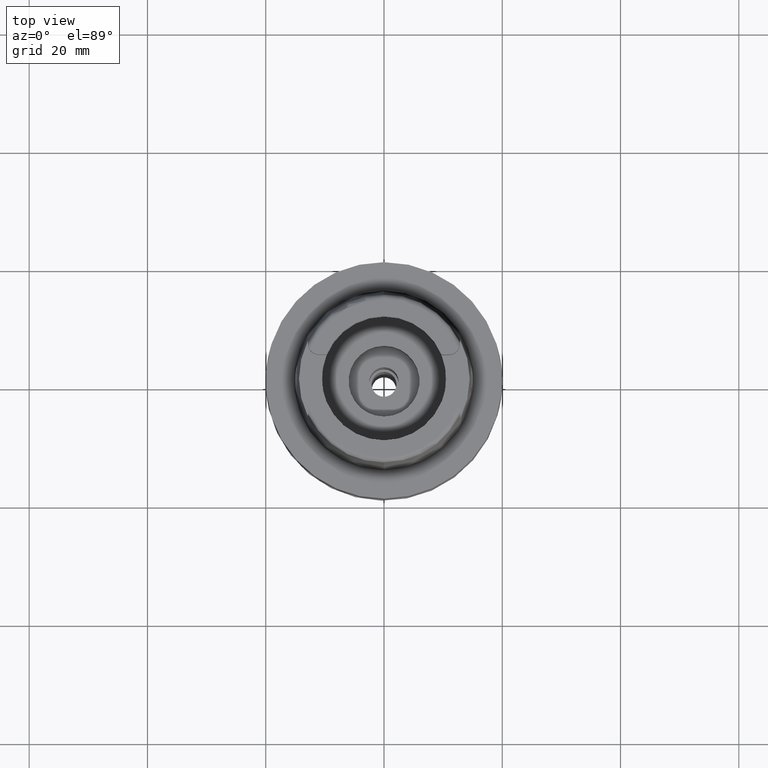
[diagram: clean part render]
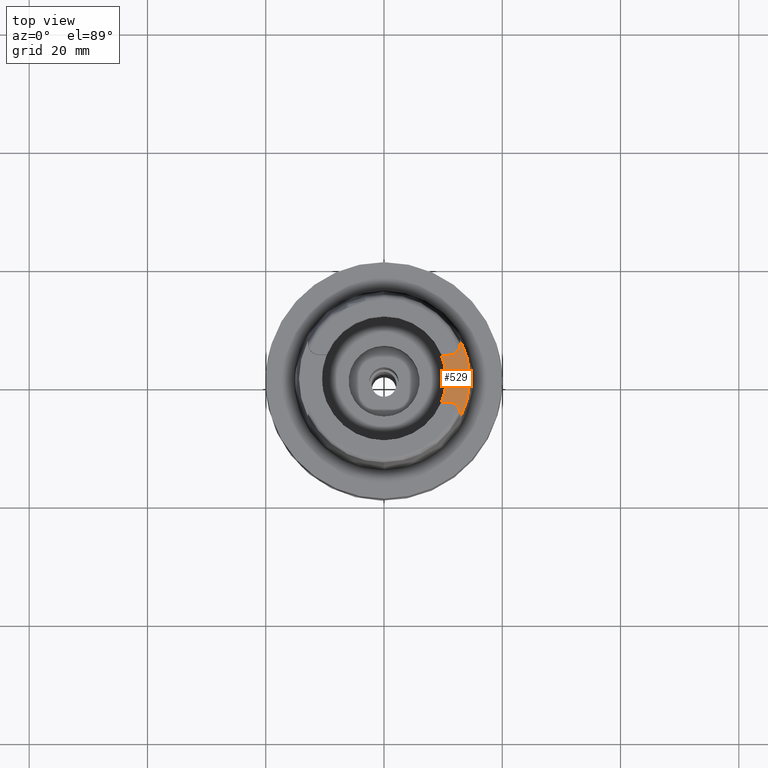
[diagram: same view with one face highlighted and labeled with its STEP entity id]
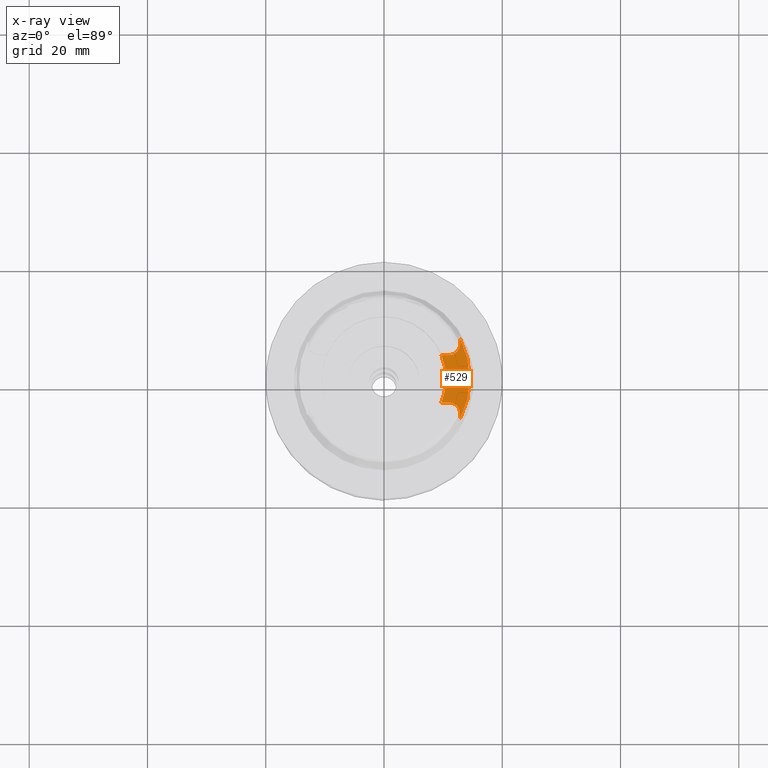
[diagram: x-ray of the same camera — body ghosted, the highlighted face saturated]
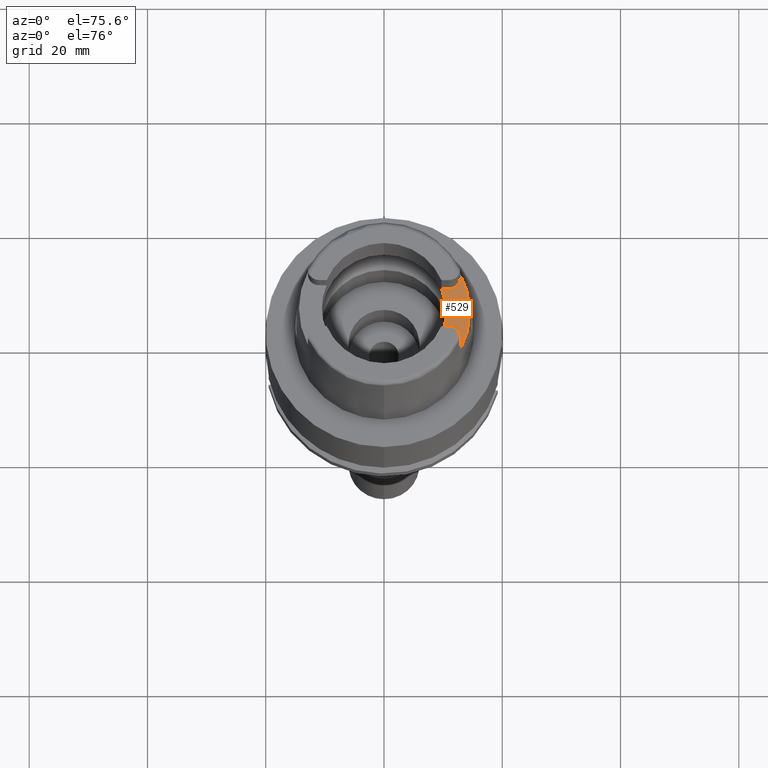
[diagram: same view with one face highlighted and labeled with its STEP entity id]
A machine part, top view. The second image highlights one B-rep face of the part: STEP entity #529.
The next image is the same camera in x-ray: the body ghosted, the highlighted face saturated — about 0% of this face is hidden behind the body in this view.
A second angle (auxiliary view) of the same face is appended — the face is thin or edge-on in the first view.
In plain terms, the highlighted planar face has unit normal (0, 0, 1).
Its self-contained STEP definition (entity closure, byte-faithful):
#44 = FACE_OUTER_BOUND ( 'NONE', #3486, .T. ) ;
#78 = VERTEX_POINT ( 'NONE', #3207 ) ;
#120 = CARTESIAN_POINT ( 'NONE',  ( 12.88000000001000167, 6.659963896840999986, 14.00000000000000000 ) ) ;
#247 = ORIENTED_EDGE ( 'NONE', *, *, #4258, .F. ) ;
#314 = VECTOR ( 'NONE', #4178, 1000.000000000000000 ) ;
#410 = VERTEX_POINT ( 'NONE', #1577 ) ;
#501 = AXIS2_PLACEMENT_3D ( 'NONE', #1973, #3650, #4432 ) ;
#529 = ADVANCED_FACE ( 'NONE', ( #44 ), #2117, .T. ) ;
#620 = DIRECTION ( 'NONE',  ( 0.0000000000000000000, 0.0000000000000000000, 1.000000000000000000 ) ) ;
#648 = LINE ( 'NONE', #1896, #2733 ) ;
#679 = CIRCLE ( 'NONE', #501, 10.49999999999999822 ) ;
#688 = LINE ( 'NONE', #1985, #1730 ) ;
#760 = ORIENTED_EDGE ( 'NONE', *, *, #4969, .F. ) ;
#908 = CARTESIAN_POINT ( 'NONE',  ( 9.697905701747998819, 4.025000000000000355, 14.00000000000000000 ) ) ;
#966 = DIRECTION ( 'NONE',  ( 0.8882768779220027167, 0.4593083802296007434, 0.0000000000000000000 ) ) ;
#1102 = ORIENTED_EDGE ( 'NONE', *, *, #2345, .F. ) ;
#1194 = CARTESIAN_POINT ( 'NONE',  ( 12.88000000000000078, 5.904999999999999361, 14.00000000000000000 ) ) ;
#1248 = CARTESIAN_POINT ( 'NONE',  ( 0.0000000000000000000, 0.0000000000000000000, 14.00000000000000000 ) ) ;
#1288 = CARTESIAN_POINT ( 'NONE',  ( 0.0000000000000000000, 0.0000000000000000000, 14.00000000000000000 ) ) ;
#1506 = ORIENTED_EDGE ( 'NONE', *, *, #1954, .F. ) ;
#1577 = CARTESIAN_POINT ( 'NONE',  ( 9.697905701747998819, 4.025000000000000355, 14.00000000000000000 ) ) ;
#1632 = AXIS2_PLACEMENT_3D ( 'NONE', #1288, #3046, #966 ) ;
#1633 = DIRECTION ( 'NONE',  ( 1.000000000000000000, 0.0000000000000000000, 0.0000000000000000000 ) ) ;
#1690 = LINE ( 'NONE', #908, #314 ) ;
#1730 = VECTOR ( 'NONE', #3982, 1000.000000000000227 ) ;
#1835 = ORIENTED_EDGE ( 'NONE', *, *, #3383, .F. ) ;
#1847 = VERTEX_POINT ( 'NONE', #1194 ) ;
#1893 = ORIENTED_EDGE ( 'NONE', *, *, #4910, .F. ) ;
#1896 = CARTESIAN_POINT ( 'NONE',  ( 12.88000825962999940, -6.659927628489000107, 14.00000000000000000 ) ) ;
#1954 = EDGE_CURVE ( 'NONE', #4323, #2676, #3736, .T. ) ;
#1973 = CARTESIAN_POINT ( 'NONE',  ( 0.0000000000000000000, 0.0000000000000000000, 14.00000000000000000 ) ) ;
#1985 = CARTESIAN_POINT ( 'NONE',  ( 12.88000000000000078, 5.904999999999999361, 14.00000000000000000 ) ) ;
#2066 = CIRCLE ( 'NONE', #2481, 1.879999999999999671 ) ;
#2117 = PLANE ( 'NONE',  #4183 ) ;
#2136 = VERTEX_POINT ( 'NONE', #120 ) ;
#2323 = CARTESIAN_POINT ( 'NONE',  ( 11.00000000000000000, 5.904999999999999361, 14.00000000000000000 ) ) ;
#2345 = EDGE_CURVE ( 'NONE', #410, #78, #1690, .T. ) ;
#2481 = AXIS2_PLACEMENT_3D ( 'NONE', #2323, #2768, #5252 ) ;
#2495 = ORIENTED_EDGE ( 'NONE', *, *, #5040, .F. ) ;
#2531 = EDGE_CURVE ( 'NONE', #4759, #4323, #4702, .T. ) ;
#2585 = DIRECTION ( 'NONE',  ( -1.094096263035051506E-05, 0.9999999999401476547, -1.505930282910069536E-13 ) ) ;
#2676 = VERTEX_POINT ( 'NONE', #3283 ) ;
#2733 = VECTOR ( 'NONE', #2585, 1000.000000000000114 ) ;
#2768 = DIRECTION ( 'NONE',  ( 0.0000000000000000000, 0.0000000000000000000, 1.000000000000000000 ) ) ;
#3046 = DIRECTION ( 'NONE',  ( 0.0000000000000000000, 0.0000000000000000000, -1.000000000000000000 ) ) ;
#3071 = CARTESIAN_POINT ( 'NONE',  ( 11.00000000000000000, -5.904999999999999361, 14.00000000000000000 ) ) ;
#3117 = CARTESIAN_POINT ( 'NONE',  ( 12.88000000001000167, -6.659963896840999986, 14.00000000000000000 ) ) ;
#3207 = CARTESIAN_POINT ( 'NONE',  ( 11.00000000000000000, 4.025000000000000355, 14.00000000000000000 ) ) ;
#3249 = AXIS2_PLACEMENT_3D ( 'NONE', #3071, #620, #4710 ) ;
#3283 = CARTESIAN_POINT ( 'NONE',  ( 9.697905701747998819, -4.025000000000000355, 14.00000000000000000 ) ) ;
#3325 = CARTESIAN_POINT ( 'NONE',  ( 11.00000000000000000, -4.025000000000000355, 14.00000000000000000 ) ) ;
#3383 = EDGE_CURVE ( 'NONE', #2676, #410, #679, .T. ) ;
#3387 = CARTESIAN_POINT ( 'NONE',  ( 11.00000000000000000, -4.025000000000000355, 14.00000000000000000 ) ) ;
#3486 = EDGE_LOOP ( 'NONE', ( #1506, #3599, #760, #1893, #247, #2495, #1102, #1835 ) ) ;
#3599 = ORIENTED_EDGE ( 'NONE', *, *, #2531, .F. ) ;
#3650 = DIRECTION ( 'NONE',  ( 0.0000000000000000000, 0.0000000000000000000, 1.000000000000000000 ) ) ;
#3736 = LINE ( 'NONE', #3387, #4365 ) ;
#3738 = DIRECTION ( 'NONE',  ( 0.0000000000000000000, 0.0000000000000000000, 1.000000000000000000 ) ) ;
#3764 = DIRECTION ( 'NONE',  ( -1.000000000000000000, -1.705288205493999919E-14, 0.0000000000000000000 ) ) ;
#3868 = CIRCLE ( 'NONE', #1632, 14.49998341749000730 ) ;
#3982 = DIRECTION ( 'NONE',  ( -2.427729565223884842E-06, 0.9999999999970530240, 1.505841885547929791E-13 ) ) ;
#4178 = DIRECTION ( 'NONE',  ( 1.000000000000000000, -1.637076677275000359E-14, 0.0000000000000000000 ) ) ;
#4183 = AXIS2_PLACEMENT_3D ( 'NONE', #1248, #3738, #1633 ) ;
#4211 = VERTEX_POINT ( 'NONE', #3117 ) ;
#4258 = EDGE_CURVE ( 'NONE', #1847, #2136, #688, .T. ) ;
#4323 = VERTEX_POINT ( 'NONE', #3325 ) ;
#4365 = VECTOR ( 'NONE', #3764, 1000.000000000000000 ) ;
#4432 = DIRECTION ( 'NONE',  ( 0.9236100668331782559, -0.3833333333332911153, 0.0000000000000000000 ) ) ;
#4702 = CIRCLE ( 'NONE', #3249, 1.879999999999999671 ) ;
#4710 = DIRECTION ( 'NONE',  ( 1.000000000000000000, 5.467147125086480300E-13, 0.0000000000000000000 ) ) ;
#4759 = VERTEX_POINT ( 'NONE', #4793 ) ;
#4793 = CARTESIAN_POINT ( 'NONE',  ( 12.88000000000000078, -5.904999999999999361, 14.00000000000000000 ) ) ;
#4910 = EDGE_CURVE ( 'NONE', #2136, #4211, #3868, .T. ) ;
#4969 = EDGE_CURVE ( 'NONE', #4211, #4759, #648, .T. ) ;
#5040 = EDGE_CURVE ( 'NONE', #78, #1847, #2066, .T. ) ;
#5252 = DIRECTION ( 'NONE',  ( 0.0000000000000000000, -1.000000000000000000, 0.0000000000000000000 ) ) ;